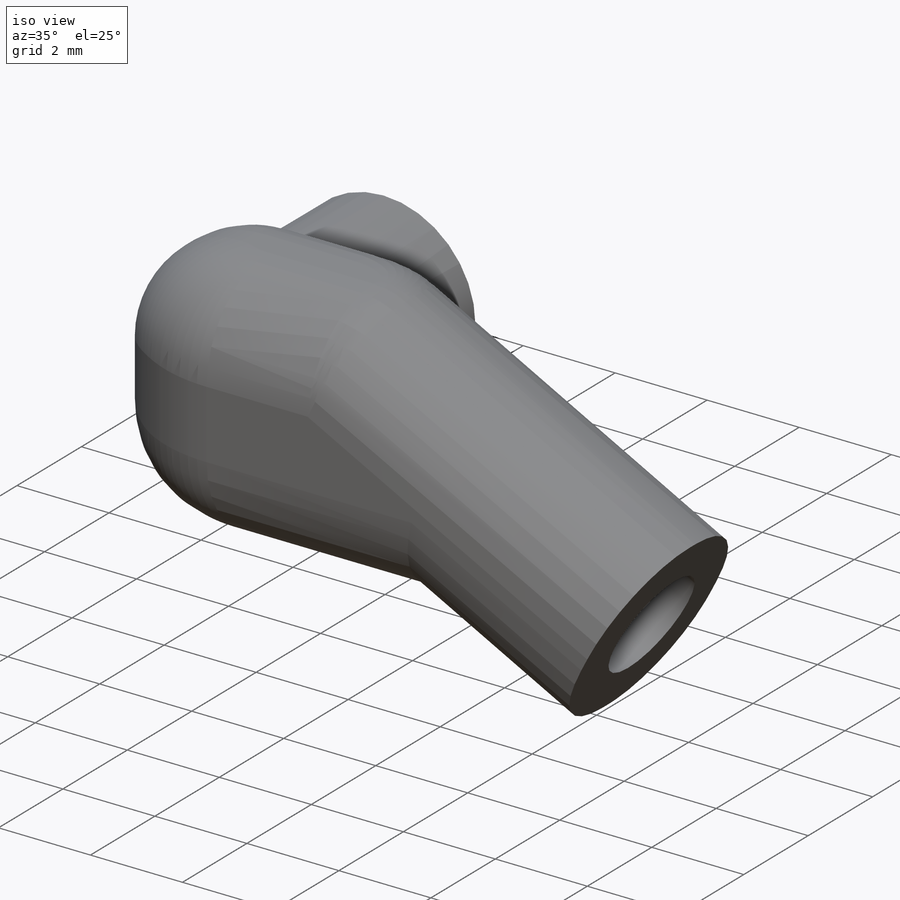
[diagram: iso view]
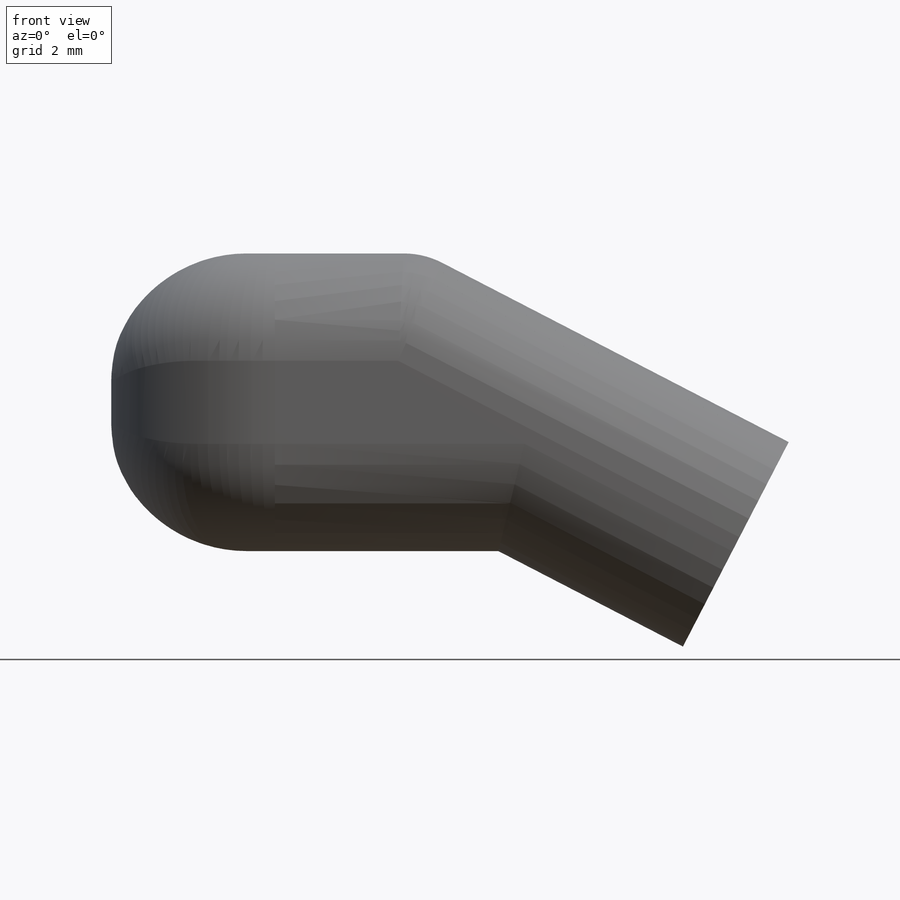
[diagram: front view]
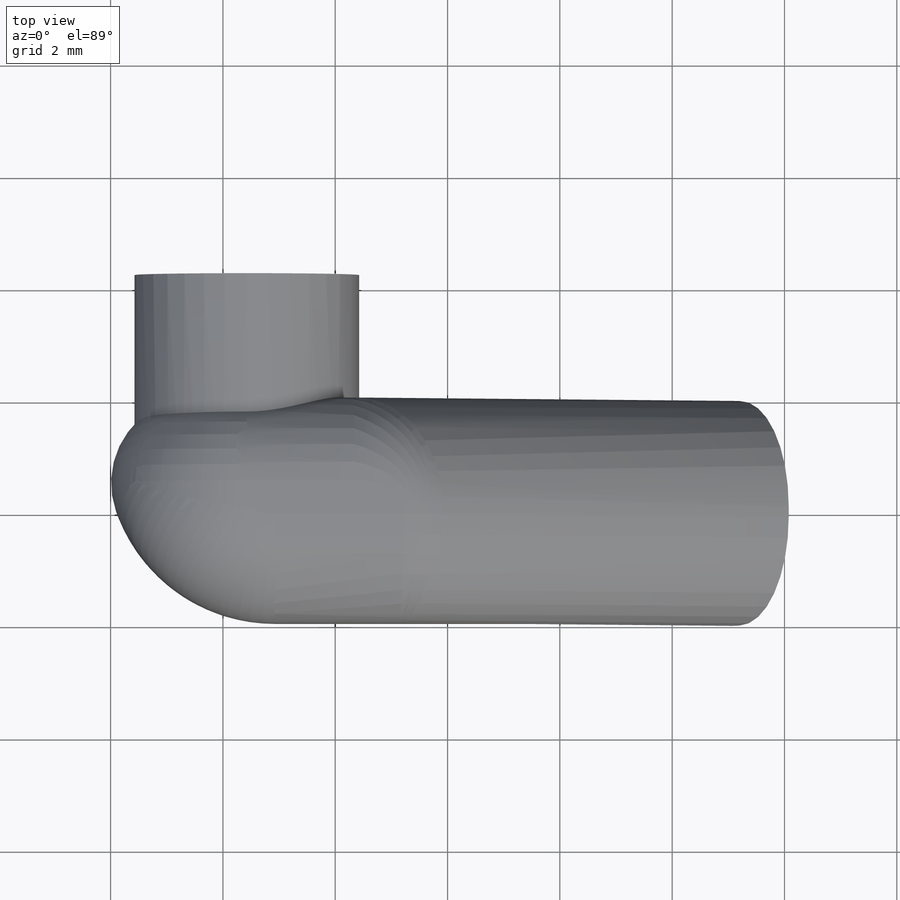
[diagram: top view]
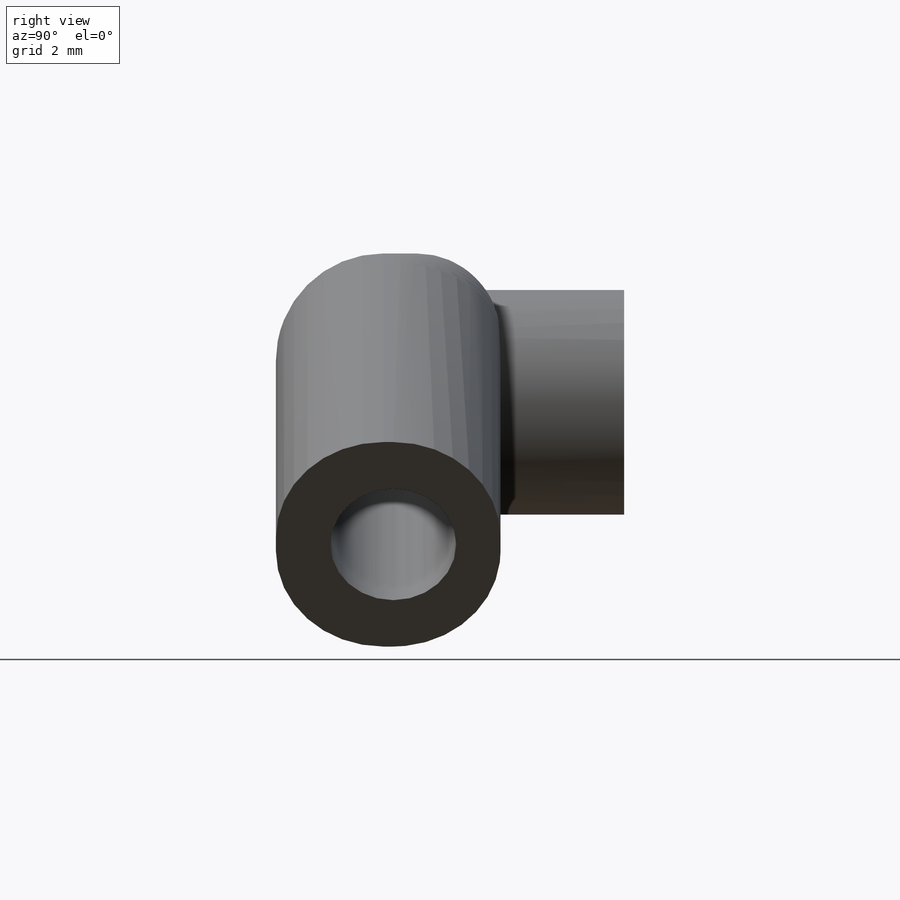
[diagram: right view]
SOLIDWORKS PART (.sldprt)
format: sldprt  version: not decoded by parser v0  size: 331,776 bytes
history: native  units: mm
features: sketch x3, extrude x2, fillet x2, material x1, cut_extrude x1 (+14 scaffold rows collapsed)
feature tree (23):
  scaffold x14  (default folders/planes/origin — collapsed)
  material  "Material <not specified>"
  sketch  "Sketch1"  dims[D1=12.15mm D2=7.0mm D3=5.3mm D4=3.7mm D5=4.1mm D6=3.7mm]
  extrude  "Extrude1"  Depth=4mm
  fillet  "Fillet1"  Radius=1.91mm
  fillet  "VarFillet2"  Radius=1.5mm
  sketch  "Sketch2"  dims[D1=4.0mm D2=1.0mm]
  extrude  "Extrude2"  Depth=2.2mm
  sketch  "Sketch3"  dims[D1=2.24mm]
  cut_extrude  "Extrude3"  Depth=5mm
decode coverage: 8 of 8 modeling features carry decoded parameters
note: suppression state not decoded; provenance and decode notes live in map.json
